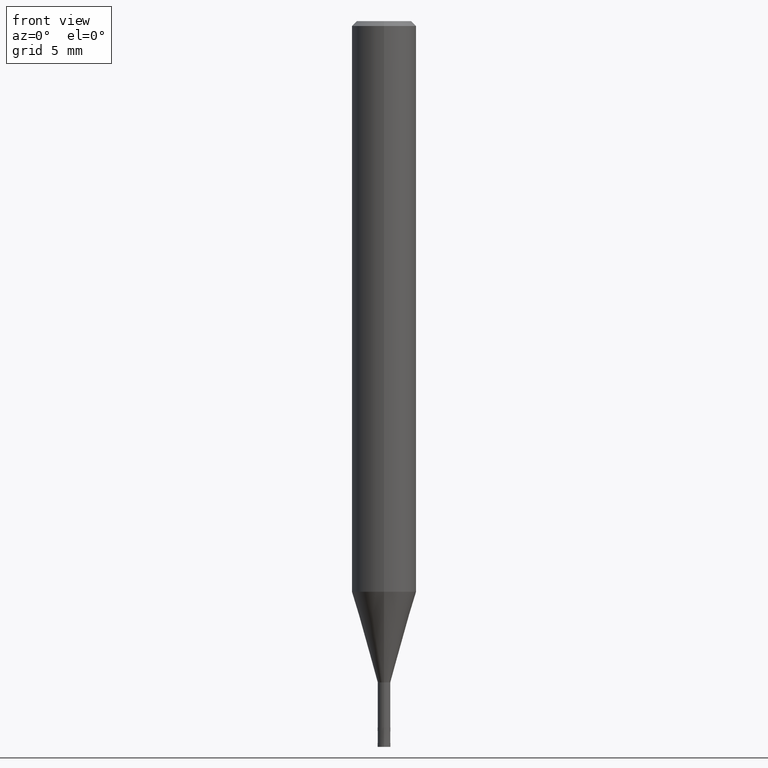
[diagram: clean part render]
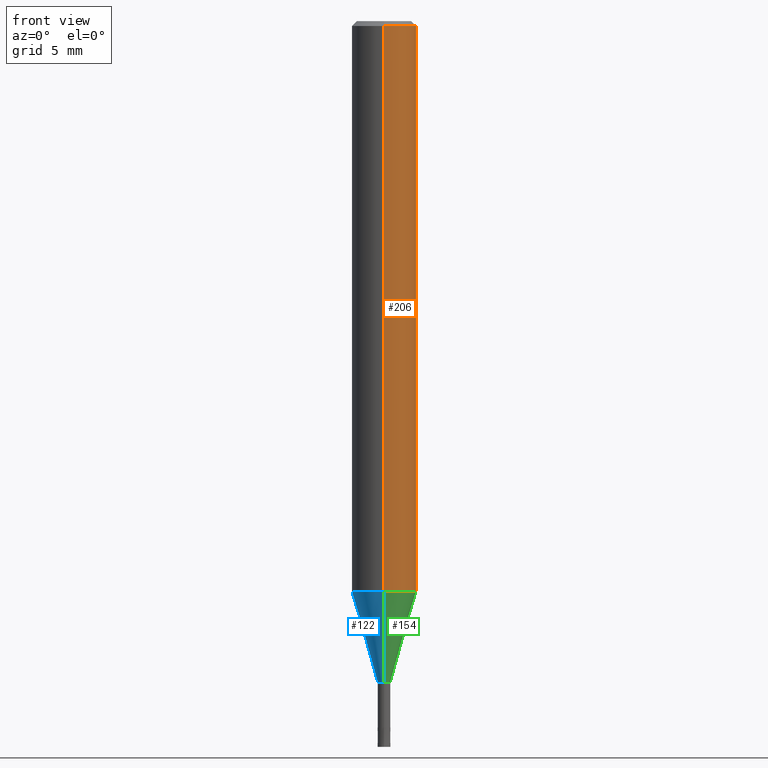
[diagram: same view with three faces highlighted in distinct colors, each labeled with its STEP entity id]
A machine part, front view with three faces highlighted in distinct colors.
Their STEP definitions:

[orange] entity #206 — the highlighted cylindrical surface (edge-blend (fillet) strip) has radius 2 mm, axis along (-0, -0, 1).
#94=VERTEX_POINT('',#231);
#112=VERTEX_POINT('',#252);
#120=EDGE_CURVE('',#94,#134,#261,.T.);
#134=VERTEX_POINT('',#278);
#136=EDGE_CURVE('',#94,#112,#280,.T.);
#156=EDGE_CURVE('',#134,#164,#304,.T.);
#164=VERTEX_POINT('',#313);
#192=EDGE_CURVE('',#164,#112,#344,.T.);
#206=ADVANCED_FACE('',(#358),#359,.T.);
#231=CARTESIAN_POINT('',(0.0,2.0,-0.299999999999997));
#252=CARTESIAN_POINT('',(2.44921270764475E-016,-2.0,-0.299999999999997));
#261=LINE('',#413,#414);
#278=CARTESIAN_POINT('',(0.0,2.0,-35.385));
#280=CIRCLE('',#435,2.0);
#304=CIRCLE('',#465,2.0);
#313=CARTESIAN_POINT('',(2.44921270764475E-016,-2.0,-35.385));
#344=LINE('',#517,#518);
#358=FACE_OUTER_BOUND('',#536,.T.);
#359=CYLINDRICAL_SURFACE('',#537,2.0);
#413=CARTESIAN_POINT('',(-2.44921270764475E-016,2.0,-17.8425));
#414=VECTOR('',#585,1.0);
#435=AXIS2_PLACEMENT_3D('',#610,#611,#612);
#465=AXIS2_PLACEMENT_3D('',#642,#643,#644);
#517=CARTESIAN_POINT('',(2.44921270764475E-016,-2.0,-17.8425));
#518=VECTOR('',#695,1.0);
#536=EDGE_LOOP('',(#704,#705,#706,#707));
#537=AXIS2_PLACEMENT_3D('',#708,#709,#710);
#585=DIRECTION('',(0.0,0.0,-1.0));
#610=CARTESIAN_POINT('',(0.0,0.0,-0.299999999999997));
#611=DIRECTION('',(0.0,0.0,-1.0));
#612=DIRECTION('',(0.0,1.0,0.0));
#642=CARTESIAN_POINT('',(0.0,0.0,-35.385));
#643=DIRECTION('',(0.0,0.0,-1.0));
#644=DIRECTION('',(0.0,1.0,0.0));
#695=DIRECTION('',(-0.0,-0.0,1.0));
#704=ORIENTED_EDGE('',*,*,#120,.F.);
#705=ORIENTED_EDGE('',*,*,#136,.T.);
#706=ORIENTED_EDGE('',*,*,#192,.F.);
#707=ORIENTED_EDGE('',*,*,#156,.F.);
#708=CARTESIAN_POINT('',(0.0,0.0,-17.8425));
#709=DIRECTION('',(-0.0,-0.0,1.0));
#710=DIRECTION('',(0.0,1.0,0.0));

[blue] entity #122 — the highlighted conical surface has half-angle 15.999 deg.
#102=VERTEX_POINT('',#241);
#104=VERTEX_POINT('',#243);
#122=ADVANCED_FACE('',(#263),#264,.T.);
#140=EDGE_CURVE('',#166,#102,#284,.T.);
#166=VERTEX_POINT('',#315);
#178=EDGE_CURVE('',#104,#102,#328,.T.);
#182=VERTEX_POINT('',#333);
#186=EDGE_CURVE('',#104,#182,#337,.T.);
#202=EDGE_CURVE('',#182,#166,#354,.T.);
#241=CARTESIAN_POINT('',(0.0,0.38995,-41.0));
#243=CARTESIAN_POINT('',(4.77535247673036E-017,-0.38995,-41.0));
#263=FACE_OUTER_BOUND('',#416,.T.);
#264=CONICAL_SURFACE('',#417,1.19495,0.279240281890545);
#284=LINE('',#440,#441);
#315=CARTESIAN_POINT('',(0.0,1.99995,-35.385));
#328=CIRCLE('',#494,0.38995);
#333=CARTESIAN_POINT('',(2.44915147732706E-016,-1.99995,-35.385));
#337=LINE('',#506,#507);
#354=CIRCLE('',#532,1.99995);
#416=EDGE_LOOP('',(#587,#588,#589,#590));
#417=AXIS2_PLACEMENT_3D('',#591,#592,#593);
#440=CARTESIAN_POINT('',(-1.46334336250005E-016,1.19495,-38.1925));
#441=VECTOR('',#613,1.0);
#494=AXIS2_PLACEMENT_3D('',#675,#676,#677);
#506=CARTESIAN_POINT('',(1.46334336250005E-016,-1.19495,-38.1925));
#507=VECTOR('',#685,1.0);
#532=AXIS2_PLACEMENT_3D('',#700,#701,#702);
#587=ORIENTED_EDGE('',*,*,#140,.T.);
#588=ORIENTED_EDGE('',*,*,#178,.F.);
#589=ORIENTED_EDGE('',*,*,#186,.T.);
#590=ORIENTED_EDGE('',*,*,#202,.T.);
#591=CARTESIAN_POINT('',(0.0,0.0,-38.1925));
#592=DIRECTION('',(-0.0,-0.0,1.0));
#593=DIRECTION('',(0.0,1.0,0.0));
#613=DIRECTION('',(3.37532662235176E-017,-0.275625437661361,-0.961265113334497));
#675=CARTESIAN_POINT('',(0.0,0.0,-41.0));
#676=DIRECTION('',(0.0,0.0,-1.0));
#677=DIRECTION('',(0.0,1.0,0.0));
#685=DIRECTION('',(3.37532662235176E-017,-0.275625437661361,0.961265113334497));
#700=CARTESIAN_POINT('',(0.0,0.0,-35.385));
#701=DIRECTION('',(0.0,0.0,-1.0));
#702=DIRECTION('',(0.0,1.0,0.0));

[green] entity #154 — the highlighted conical surface has half-angle 15.999 deg.
#102=VERTEX_POINT('',#241);
#104=VERTEX_POINT('',#243);
#118=EDGE_CURVE('',#166,#182,#259,.T.);
#140=EDGE_CURVE('',#166,#102,#284,.T.);
#154=ADVANCED_FACE('',(#301),#302,.T.);
#166=VERTEX_POINT('',#315);
#176=EDGE_CURVE('',#102,#104,#326,.T.);
#182=VERTEX_POINT('',#333);
#186=EDGE_CURVE('',#104,#182,#337,.T.);
#241=CARTESIAN_POINT('',(0.0,0.38995,-41.0));
#243=CARTESIAN_POINT('',(4.77535247673036E-017,-0.38995,-41.0));
#259=CIRCLE('',#410,1.99995);
#284=LINE('',#440,#441);
#301=FACE_OUTER_BOUND('',#461,.T.);
#302=CONICAL_SURFACE('',#462,1.19495,0.279240281890545);
#315=CARTESIAN_POINT('',(0.0,1.99995,-35.385));
#326=CIRCLE('',#491,0.38995);
#333=CARTESIAN_POINT('',(2.44915147732706E-016,-1.99995,-35.385));
#337=LINE('',#506,#507);
#410=AXIS2_PLACEMENT_3D('',#582,#583,#584);
#440=CARTESIAN_POINT('',(-1.46334336250005E-016,1.19495,-38.1925));
#441=VECTOR('',#613,1.0);
#461=EDGE_LOOP('',(#635,#636,#637,#638));
#462=AXIS2_PLACEMENT_3D('',#639,#640,#641);
#491=AXIS2_PLACEMENT_3D('',#672,#673,#674);
#506=CARTESIAN_POINT('',(1.46334336250005E-016,-1.19495,-38.1925));
#507=VECTOR('',#685,1.0);
#582=CARTESIAN_POINT('',(0.0,0.0,-35.385));
#583=DIRECTION('',(0.0,0.0,-1.0));
#584=DIRECTION('',(0.0,1.0,0.0));
#613=DIRECTION('',(3.37532662235176E-017,-0.275625437661361,-0.961265113334497));
#635=ORIENTED_EDGE('',*,*,#140,.F.);
#636=ORIENTED_EDGE('',*,*,#118,.T.);
#637=ORIENTED_EDGE('',*,*,#186,.F.);
#638=ORIENTED_EDGE('',*,*,#176,.F.);
#639=CARTESIAN_POINT('',(0.0,0.0,-38.1925));
#640=DIRECTION('',(-0.0,-0.0,1.0));
#641=DIRECTION('',(0.0,1.0,0.0));
#672=CARTESIAN_POINT('',(0.0,0.0,-41.0));
#673=DIRECTION('',(0.0,0.0,-1.0));
#674=DIRECTION('',(0.0,1.0,0.0));
#685=DIRECTION('',(3.37532662235176E-017,-0.275625437661361,0.961265113334497));